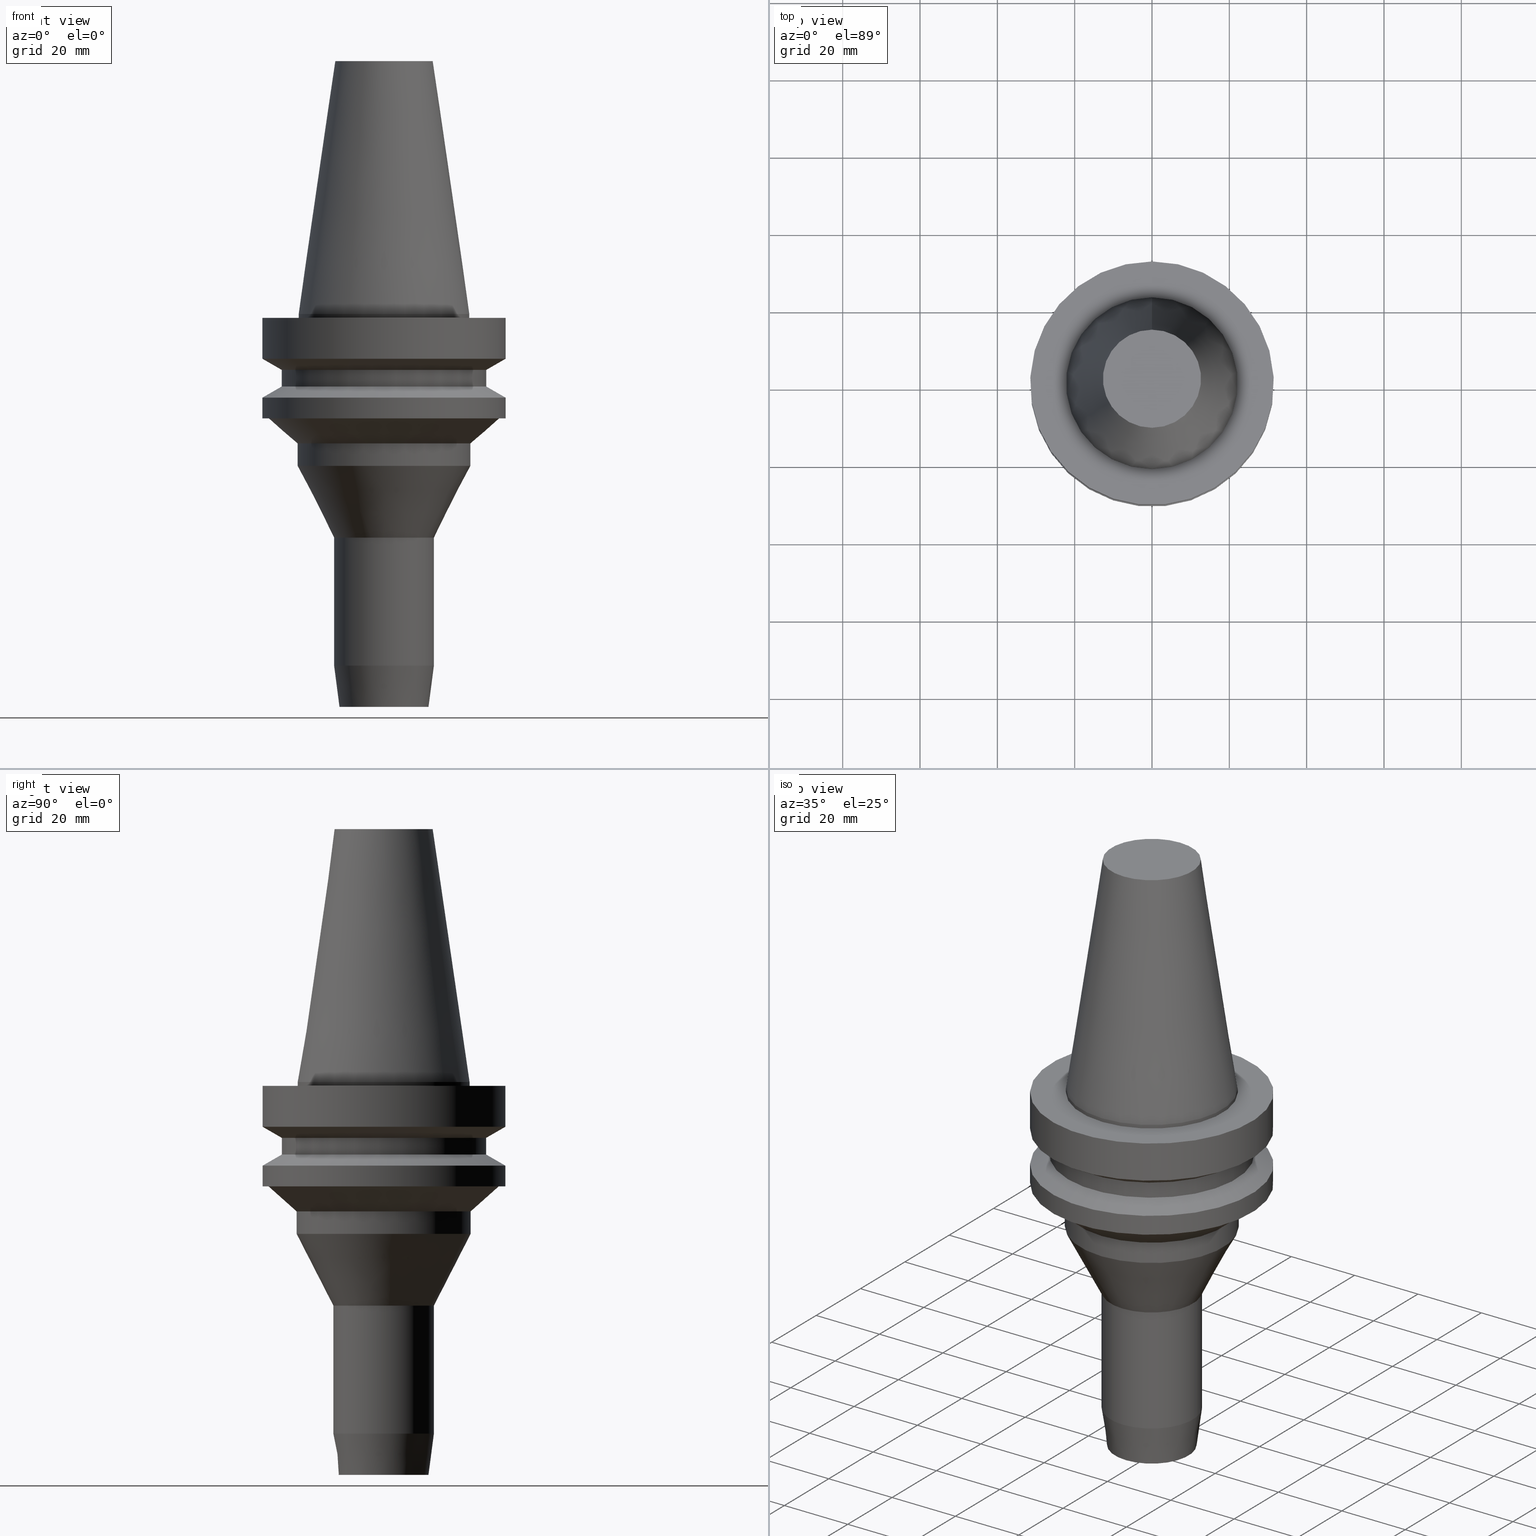
[diagram: canonical four-view strip — front | top / right | iso, engineering-drawing reading convention]
A machine part, canonical four-view strip (front | top / right | iso — engineering-drawing reading convention). The complete STEP part file that produces these views, byte-faithful:
ISO-10303-21;
HEADER;
FILE_DESCRIPTION((''),'1');
FILE_NAME('V:/90_\X2\53D65F9730C730FC30BF\X0\/00_\X2\6DE18DEF30C730FC30BF\X0\/ALL/BBT-BKUS\X2\FF76FF80FF9BFF78FF9E752852A05DE556F3\X0\201801/BBT40-HDC/BBT40-HDC.250-4.stp','2018-02-07T04:48:50',(''),(''),'Spatial Interop R21 SP3','Kubotek KeyCreator 2011 V10.0.2 (22737)',' ');
FILE_SCHEMA(('automotive_design'));
ENDSEC;
DATA;
#1=MECHANICAL_DESIGN_GEOMETRIC_PRESENTATION_REPRESENTATION(' ',(#10,#11,#12,#13,#14,#15,#16,#17,#18,#19,#20,#21,#22,#23,#24,#25,#26,#27,#28,#29,#30,#31,#32,#33,#34,#35,#36,#37,#38,#39,#40,#41),#6);
#2=PRODUCT_DEFINITION_CONTEXT('',#42,'design');
#3=APPLICATION_PROTOCOL_DEFINITION('INTERNATIONAL STANDARD','automotive_design',1994,#42);
#4=PRODUCT_CATEGORY_RELATIONSHIP('NONE','NONE',#43,#44);
#5=SHAPE_DEFINITION_REPRESENTATION(#45,#46);
#6= (GEOMETRIC_REPRESENTATION_CONTEXT(3)GLOBAL_UNCERTAINTY_ASSIGNED_CONTEXT((#49))GLOBAL_UNIT_ASSIGNED_CONTEXT((#51,#52,#53))REPRESENTATION_CONTEXT('NONE','WORKSPACE'));
#10=STYLED_ITEM('',(#55,#56),#57);
#11=STYLED_ITEM('',(#58,#59),#60);
#12=STYLED_ITEM('',(#61),#62);
#13=STYLED_ITEM('',(#63),#64);
#14=STYLED_ITEM('',(#65,#66),#67);
#15=STYLED_ITEM('',(#68),#69);
#16=STYLED_ITEM('',(#70,#71),#72);
#17=STYLED_ITEM('',(#73),#74);
#18=STYLED_ITEM('',(#75,#76),#77);
#19=STYLED_ITEM('',(#78),#79);
#20=STYLED_ITEM('',(#80,#81),#82);
#21=STYLED_ITEM('',(#83),#84);
#22=STYLED_ITEM('',(#85),#86);
#23=STYLED_ITEM('',(#87),#88);
#24=STYLED_ITEM('',(#89,#90),#91);
#25=STYLED_ITEM('',(#92,#93),#94);
#26=STYLED_ITEM('',(#95,#96),#97);
#27=STYLED_ITEM('',(#98,#99),#100);
#28=STYLED_ITEM('',(#101),#102);
#29=STYLED_ITEM('',(#103),#104);
#30=STYLED_ITEM('',(#105),#106);
#31=STYLED_ITEM('',(#107),#108);
#32=STYLED_ITEM('',(#109),#110);
#33=STYLED_ITEM('',(#111,#112),#113);
#34=STYLED_ITEM('',(#114,#115),#116);
#35=STYLED_ITEM('',(#117,#118),#119);
#36=STYLED_ITEM('',(#120,#121),#122);
#37=STYLED_ITEM('',(#123,#124),#125);
#38=STYLED_ITEM('',(#126,#127),#128);
#39=STYLED_ITEM('',(#129),#130);
#40=STYLED_ITEM('',(#131,#132),#133);
#41=STYLED_ITEM('',(#134),#135);
#42=APPLICATION_CONTEXT(' ');
#43=PRODUCT_CATEGORY('part','NONE');
#44=PRODUCT_RELATED_PRODUCT_CATEGORY('detail',' ',(#136));
#45=PRODUCT_DEFINITION_SHAPE('NONE','NONE',#137);
#46=ADVANCED_BREP_SHAPE_REPRESENTATION('Unnamed[1]',(#125,#138),#6);
#49=UNCERTAINTY_MEASURE_WITH_UNIT(LENGTH_MEASURE(1.0E-006),#51,'','');
#51= (CONVERSION_BASED_UNIT('MILLIMETRE',#141)LENGTH_UNIT()NAMED_UNIT(#144));
#52= (NAMED_UNIT(#146)PLANE_ANGLE_UNIT()SI_UNIT($,.RADIAN.));
#53= (NAMED_UNIT(#146)SOLID_ANGLE_UNIT()SI_UNIT($,.STERADIAN.));
#55=PRESENTATION_STYLE_ASSIGNMENT((#152));
#56=PRESENTATION_STYLE_ASSIGNMENT((#153));
#57=ADVANCED_FACE('Unnamed[1]',(#154,#155),#156,.T.);
#58=PRESENTATION_STYLE_ASSIGNMENT((#157));
#59=PRESENTATION_STYLE_ASSIGNMENT((#158));
#60=ADVANCED_FACE('Unnamed[1]',(#159,#160),#161,.T.);
#61=PRESENTATION_STYLE_ASSIGNMENT((#162));
#62=EDGE_CURVE('Unnamed[1]',#163,#163,#164,.T.);
#63=PRESENTATION_STYLE_ASSIGNMENT((#165));
#64=EDGE_CURVE('Unnamed[1]',#166,#166,#167,.T.);
#65=PRESENTATION_STYLE_ASSIGNMENT((#168));
#66=PRESENTATION_STYLE_ASSIGNMENT((#169));
#67=ADVANCED_FACE('Unnamed[1]',(#170,#171),#172,.T.);
#68=PRESENTATION_STYLE_ASSIGNMENT((#173));
#69=EDGE_CURVE('Unnamed[1]',#174,#174,#175,.T.);
#70=PRESENTATION_STYLE_ASSIGNMENT((#176));
#71=PRESENTATION_STYLE_ASSIGNMENT((#177));
#72=ADVANCED_FACE('Unnamed[1]',(#178,#179),#180,.T.);
#73=PRESENTATION_STYLE_ASSIGNMENT((#181));
#74=EDGE_CURVE('Unnamed[1]',#182,#182,#183,.T.);
#75=PRESENTATION_STYLE_ASSIGNMENT((#184));
#76=PRESENTATION_STYLE_ASSIGNMENT((#185));
#77=ADVANCED_FACE('Unnamed[1]',(#186,#187),#188,.T.);
#78=PRESENTATION_STYLE_ASSIGNMENT((#189));
#79=EDGE_CURVE('Unnamed[1]',#190,#190,#191,.T.);
#80=PRESENTATION_STYLE_ASSIGNMENT((#192));
#81=PRESENTATION_STYLE_ASSIGNMENT((#193));
#82=ADVANCED_FACE('Unnamed[1]',(#194,#195),#196,.T.);
#83=PRESENTATION_STYLE_ASSIGNMENT((#197));
#84=EDGE_CURVE('Unnamed[1]',#198,#198,#199,.T.);
#85=PRESENTATION_STYLE_ASSIGNMENT((#200));
#86=EDGE_CURVE('Unnamed[1]',#201,#201,#202,.T.);
#87=PRESENTATION_STYLE_ASSIGNMENT((#203));
#88=EDGE_CURVE('Unnamed[1]',#204,#204,#205,.T.);
#89=PRESENTATION_STYLE_ASSIGNMENT((#206));
#90=PRESENTATION_STYLE_ASSIGNMENT((#207));
#91=ADVANCED_FACE('Unnamed[1]',(#208,#209),#210,.T.);
#92=PRESENTATION_STYLE_ASSIGNMENT((#211));
#93=PRESENTATION_STYLE_ASSIGNMENT((#212));
#94=ADVANCED_FACE('Unnamed[1]',(#213,#214),#215,.T.);
#95=PRESENTATION_STYLE_ASSIGNMENT((#216));
#96=PRESENTATION_STYLE_ASSIGNMENT((#217));
#97=ADVANCED_FACE('Unnamed[1]',(#218),#219,.T.);
#98=PRESENTATION_STYLE_ASSIGNMENT((#220));
#99=PRESENTATION_STYLE_ASSIGNMENT((#221));
#100=ADVANCED_FACE('Unnamed[1]',(#222,#223),#224,.T.);
#101=PRESENTATION_STYLE_ASSIGNMENT((#225));
#102=EDGE_CURVE('Unnamed[1]',#226,#226,#227,.T.);
#103=PRESENTATION_STYLE_ASSIGNMENT((#228));
#104=EDGE_CURVE('Unnamed[1]',#229,#229,#230,.T.);
#105=PRESENTATION_STYLE_ASSIGNMENT((#231));
#106=EDGE_CURVE('Unnamed[1]',#232,#232,#233,.T.);
#107=PRESENTATION_STYLE_ASSIGNMENT((#234));
#108=EDGE_CURVE('Unnamed[1]',#235,#235,#236,.T.);
#109=PRESENTATION_STYLE_ASSIGNMENT((#237));
#110=EDGE_CURVE('Unnamed[1]',#238,#238,#239,.T.);
#111=PRESENTATION_STYLE_ASSIGNMENT((#240));
#112=PRESENTATION_STYLE_ASSIGNMENT((#241));
#113=ADVANCED_FACE('Unnamed[1]',(#242,#243),#244,.T.);
#114=PRESENTATION_STYLE_ASSIGNMENT((#245));
#115=PRESENTATION_STYLE_ASSIGNMENT((#246));
#116=ADVANCED_FACE('Unnamed[1]',(#247,#248),#249,.T.);
#117=PRESENTATION_STYLE_ASSIGNMENT((#250));
#118=PRESENTATION_STYLE_ASSIGNMENT((#251));
#119=ADVANCED_FACE('Unnamed[1]',(#252),#253,.T.);
#120=PRESENTATION_STYLE_ASSIGNMENT((#254));
#121=PRESENTATION_STYLE_ASSIGNMENT((#255));
#122=ADVANCED_FACE('Unnamed[1]',(#256,#257),#258,.T.);
#123=PRESENTATION_STYLE_ASSIGNMENT((#259));
#124=PRESENTATION_STYLE_ASSIGNMENT((#260));
#125=MANIFOLD_SOLID_BREP('Unnamed[1]',#261);
#126=PRESENTATION_STYLE_ASSIGNMENT((#262));
#127=PRESENTATION_STYLE_ASSIGNMENT((#263));
#128=ADVANCED_FACE('Unnamed[1]',(#264,#265),#266,.T.);
#129=PRESENTATION_STYLE_ASSIGNMENT((#267));
#130=EDGE_CURVE('Unnamed[1]',#268,#268,#269,.T.);
#131=PRESENTATION_STYLE_ASSIGNMENT((#270));
#132=PRESENTATION_STYLE_ASSIGNMENT((#271));
#133=ADVANCED_FACE('Unnamed[1]',(#272,#273),#274,.T.);
#134=PRESENTATION_STYLE_ASSIGNMENT((#275));
#135=EDGE_CURVE('Unnamed[1]',#276,#276,#277,.T.);
#136=PRODUCT('Unnamed[1]','Unnamed[1]','PART-Unnamed[1]-DESC',(#278));
#137=PRODUCT_DEFINITION('NONE','NONE',#279,#2);
#138=AXIS2_PLACEMENT_3D('',#280,#281,#282);
#141=LENGTH_MEASURE_WITH_UNIT(LENGTH_MEASURE(1.0),#283);
#144=DIMENSIONAL_EXPONENTS(1.0,0.0,0.0,0.0,0.0,0.0,0.0);
#146=DIMENSIONAL_EXPONENTS(0.0,0.0,0.0,0.0,0.0,0.0,0.0);
#152=SURFACE_STYLE_USAGE(.BOTH.,#284);
#153=CURVE_STYLE('',#285,POSITIVE_LENGTH_MEASURE(1000.0),#286);
#154=FACE_BOUND('',#287,.T.);
#155=FACE_BOUND('',#288,.T.);
#156=CONICAL_SURFACE('',#289,17.4562500000001,0.144812498238936);
#157=SURFACE_STYLE_USAGE(.BOTH.,#290);
#158=CURVE_STYLE('',#291,POSITIVE_LENGTH_MEASURE(1000.0),#292);
#159=FACE_BOUND('',#293,.T.);
#160=FACE_BOUND('',#294,.T.);
#161=CONICAL_SURFACE('',#295,28.9999999999999,1.04719755119657);
#162=CURVE_STYLE('',#296,POSITIVE_LENGTH_MEASURE(1000.0),#297);
#163=VERTEX_POINT('',#298);
#164=CIRCLE('',#299,26.4999999999994);
#165=CURVE_STYLE('',#300,POSITIVE_LENGTH_MEASURE(1000.0),#301);
#166=VERTEX_POINT('',#302);
#167=CIRCLE('',#303,22.5000000000004);
#168=SURFACE_STYLE_USAGE(.BOTH.,#304);
#169=CURVE_STYLE('',#305,POSITIVE_LENGTH_MEASURE(1000.0),#306);
#170=FACE_BOUND('',#307,.T.);
#171=FACE_BOUND('',#308,.T.);
#172=CONICAL_SURFACE('',#309,26.126119515502,0.842867621947714);
#173=CURVE_STYLE('',#310,POSITIVE_LENGTH_MEASURE(1000.0),#311);
#174=VERTEX_POINT('',#312);
#175=CIRCLE('',#313,13.0000000000003);
#176=SURFACE_STYLE_USAGE(.BOTH.,#314);
#177=CURVE_STYLE('',#315,POSITIVE_LENGTH_MEASURE(1000.0),#316);
#178=FACE_BOUND('',#317,.T.);
#179=FACE_BOUND('',#318,.T.);
#180=CYLINDRICAL_SURFACE('',#319,22.225);
#181=CURVE_STYLE('',#320,POSITIVE_LENGTH_MEASURE(1000.0),#321);
#182=VERTEX_POINT('',#322);
#183=CIRCLE('',#323,22.225);
#184=SURFACE_STYLE_USAGE(.BOTH.,#324);
#185=CURVE_STYLE('',#325,POSITIVE_LENGTH_MEASURE(1000.0),#326);
#186=FACE_BOUND('',#327,.T.);
#187=FACE_BOUND('',#328,.T.);
#188=CYLINDRICAL_SURFACE('',#329,26.4999999999997);
#189=CURVE_STYLE('',#330,POSITIVE_LENGTH_MEASURE(1000.0),#331);
#190=VERTEX_POINT('',#332);
#191=CIRCLE('',#333,22.225);
#192=SURFACE_STYLE_USAGE(.BOTH.,#334);
#193=CURVE_STYLE('',#335,POSITIVE_LENGTH_MEASURE(1000.0),#336);
#194=FACE_BOUND('',#337,.T.);
#195=FACE_BOUND('',#338,.T.);
#196=CONICAL_SURFACE('',#339,12.2979216258449,0.130899693899574);
#197=CURVE_STYLE('',#340,POSITIVE_LENGTH_MEASURE(1000.0),#341);
#198=VERTEX_POINT('',#342);
#199=CIRCLE('',#343,11.5958432516896);
#200=CURVE_STYLE('',#344,POSITIVE_LENGTH_MEASURE(1000.0),#345);
#201=VERTEX_POINT('',#346);
#202=CIRCLE('',#347,31.5000000000004);
#203=CURVE_STYLE('',#348,POSITIVE_LENGTH_MEASURE(1000.0),#349);
#204=VERTEX_POINT('',#350);
#205=CIRCLE('',#351,31.5000000000007);
#206=SURFACE_STYLE_USAGE(.BOTH.,#352);
#207=CURVE_STYLE('',#353,POSITIVE_LENGTH_MEASURE(1000.0),#354);
#208=FACE_BOUND('',#355,.T.);
#209=FACE_BOUND('',#356,.T.);
#210=CYLINDRICAL_SURFACE('',#357,22.5000000000001);
#211=SURFACE_STYLE_USAGE(.BOTH.,#358);
#212=CURVE_STYLE('',#359,POSITIVE_LENGTH_MEASURE(1000.0),#360);
#213=FACE_BOUND('',#361,.T.);
#214=FACE_OUTER_BOUND('',#362,.T.);
#215=PLANE('',#363);
#216=SURFACE_STYLE_USAGE(.BOTH.,#364);
#217=CURVE_STYLE('',#365,POSITIVE_LENGTH_MEASURE(1000.0),#366);
#218=FACE_OUTER_BOUND('',#367,.T.);
#219=PLANE('',#368);
#220=SURFACE_STYLE_USAGE(.BOTH.,#369);
#221=CURVE_STYLE('',#370,POSITIVE_LENGTH_MEASURE(1000.0),#371);
#222=FACE_BOUND('',#372,.T.);
#223=FACE_BOUND('',#373,.T.);
#224=CONICAL_SURFACE('',#374,17.749999999999,0.473260842442208);
#225=CURVE_STYLE('',#375,POSITIVE_LENGTH_MEASURE(1000.0),#376);
#226=VERTEX_POINT('',#377);
#227=CIRCLE('',#378,31.5000000000003);
#228=CURVE_STYLE('',#379,POSITIVE_LENGTH_MEASURE(1000.0),#380);
#229=VERTEX_POINT('',#381);
#230=CIRCLE('',#382,12.6875000000001);
#231=CURVE_STYLE('',#383,POSITIVE_LENGTH_MEASURE(1000.0),#384);
#232=VERTEX_POINT('',#385);
#233=CIRCLE('',#386,26.5);
#234=CURVE_STYLE('',#387,POSITIVE_LENGTH_MEASURE(1000.0),#388);
#235=VERTEX_POINT('',#389);
#236=CIRCLE('',#390,29.7522390310041);
#237=CURVE_STYLE('',#391,POSITIVE_LENGTH_MEASURE(1000.0),#392);
#238=VERTEX_POINT('',#393);
#239=CIRCLE('',#394,12.9999999999976);
#240=SURFACE_STYLE_USAGE(.BOTH.,#395);
#241=CURVE_STYLE('',#396,POSITIVE_LENGTH_MEASURE(1000.0),#397);
#242=FACE_BOUND('',#398,.T.);
#243=FACE_BOUND('',#399,.T.);
#244=CYLINDRICAL_SURFACE('',#400,31.5000000000005);
#245=SURFACE_STYLE_USAGE(.BOTH.,#401);
#246=CURVE_STYLE('',#402,POSITIVE_LENGTH_MEASURE(1000.0),#403);
#247=FACE_BOUND('',#404,.T.);
#248=FACE_BOUND('',#405,.T.);
#249=CYLINDRICAL_SURFACE('',#406,31.5);
#250=SURFACE_STYLE_USAGE(.BOTH.,#407);
#251=CURVE_STYLE('',#408,POSITIVE_LENGTH_MEASURE(1000.0),#409);
#252=FACE_OUTER_BOUND('',#410,.T.);
#253=PLANE('',#411);
#254=SURFACE_STYLE_USAGE(.BOTH.,#412);
#255=CURVE_STYLE('',#413,POSITIVE_LENGTH_MEASURE(1000.0),#414);
#256=FACE_BOUND('',#415,.T.);
#257=FACE_BOUND('',#416,.T.);
#258=CONICAL_SURFACE('',#417,29.0000000000003,1.04719755119651);
#259=SURFACE_STYLE_USAGE(.BOTH.,#418);
#260=CURVE_STYLE('',#419,POSITIVE_LENGTH_MEASURE(1000.0),#420);
#261=CLOSED_SHELL('',(#97,#57,#72,#128,#116,#60,#77,#122,#113,#94,#67,#91,#100,#133,#82,#119));
#262=SURFACE_STYLE_USAGE(.BOTH.,#421);
#263=CURVE_STYLE('',#422,POSITIVE_LENGTH_MEASURE(1000.0),#423);
#264=FACE_OUTER_BOUND('',#424,.T.);
#265=FACE_BOUND('',#425,.T.);
#266=PLANE('',#426);
#267=CURVE_STYLE('',#427,POSITIVE_LENGTH_MEASURE(1000.0),#428);
#268=VERTEX_POINT('',#429);
#269=CIRCLE('',#430,22.4999999999998);
#270=SURFACE_STYLE_USAGE(.BOTH.,#431);
#271=CURVE_STYLE('',#432,POSITIVE_LENGTH_MEASURE(1000.0),#433);
#272=FACE_BOUND('',#434,.T.);
#273=FACE_BOUND('',#435,.T.);
#274=CYLINDRICAL_SURFACE('',#436,12.999999999999);
#275=CURVE_STYLE('',#437,POSITIVE_LENGTH_MEASURE(1000.0),#438);
#276=VERTEX_POINT('',#439);
#277=CIRCLE('',#440,31.4999999999997);
#278=PRODUCT_CONTEXT('',#42,'mechanical');
#279=PRODUCT_DEFINITION_FORMATION_WITH_SPECIFIED_SOURCE(' ','NONE',#136,.NOT_KNOWN.);
#280=CARTESIAN_POINT('',(0.0,0.0,0.0));
#281=DIRECTION('',(0.0,0.0,1.0));
#282=DIRECTION('',(1.0,0.0,0.0));
#283= (NAMED_UNIT(#144)LENGTH_UNIT()SI_UNIT(.MILLI.,.METRE.));
#284=SURFACE_SIDE_STYLE('',(#442));
#285=DRAUGHTING_PRE_DEFINED_CURVE_FONT('continuous');
#286=COLOUR_RGB('',0.0,1.0,0.0);
#287=EDGE_LOOP('',(#443));
#288=EDGE_LOOP('',(#444));
#289=AXIS2_PLACEMENT_3D('',#445,#446,#447);
#290=SURFACE_SIDE_STYLE('',(#448));
#291=DRAUGHTING_PRE_DEFINED_CURVE_FONT('continuous');
#292=COLOUR_RGB('',0.0,1.0,0.0);
#293=EDGE_LOOP('',(#449));
#294=EDGE_LOOP('',(#450));
#295=AXIS2_PLACEMENT_3D('',#451,#452,#453);
#296=DRAUGHTING_PRE_DEFINED_CURVE_FONT('continuous');
#297=COLOUR_RGB('',0.0,1.0,0.0);
#298=CARTESIAN_POINT('',(8.8494551369045E-016,26.4999999999995,-14.4522569986152));
#299=AXIS2_PLACEMENT_3D('',#454,#455,#456);
#300=DRAUGHTING_PRE_DEFINED_CURVE_FONT('continuous');
#301=COLOUR_RGB('',0.0,1.0,0.0);
#302=CARTESIAN_POINT('',(2.40459052004988E-015,22.5000000000005,-39.2699433293591));
#303=AXIS2_PLACEMENT_3D('',#457,#458,#459);
#304=SURFACE_SIDE_STYLE('',(#460));
#305=DRAUGHTING_PRE_DEFINED_CURVE_FONT('continuous');
#306=COLOUR_RGB('',0.0,1.0,0.0);
#307=EDGE_LOOP('',(#461));
#308=EDGE_LOOP('',(#462));
#309=AXIS2_PLACEMENT_3D('',#463,#464,#465);
#310=DRAUGHTING_PRE_DEFINED_CURVE_FONT('continuous');
#311=COLOUR_RGB('',0.0,1.0,0.0);
#312=CARTESIAN_POINT('',(5.56812429463614E-015,13.0000000000003,-90.9343706040449));
#313=AXIS2_PLACEMENT_3D('',#466,#467,#468);
#314=SURFACE_SIDE_STYLE('',(#469));
#315=DRAUGHTING_PRE_DEFINED_CURVE_FONT('continuous');
#316=COLOUR_RGB('',0.0,1.0,0.0);
#317=EDGE_LOOP('',(#470));
#318=EDGE_LOOP('',(#471));
#319=AXIS2_PLACEMENT_3D('',#472,#473,#474);
#320=DRAUGHTING_PRE_DEFINED_CURVE_FONT('continuous');
#321=COLOUR_RGB('',0.0,1.0,0.0);
#322=CARTESIAN_POINT('',(1.71319921032766E-029,22.2250000000001,-2.8153873565375E-013));
#323=AXIS2_PLACEMENT_3D('',#475,#476,#477);
#324=SURFACE_SIDE_STYLE('',(#478));
#325=DRAUGHTING_PRE_DEFINED_CURVE_FONT('continuous');
#326=COLOUR_RGB('',0.0,1.0,0.0);
#327=EDGE_LOOP('',(#479));
#328=EDGE_LOOP('',(#480));
#329=AXIS2_PLACEMENT_3D('',#481,#482,#483);
#330=DRAUGHTING_PRE_DEFINED_CURVE_FONT('continuous');
#331=COLOUR_RGB('',0.0,1.0,0.0);
#332=CARTESIAN_POINT('',(6.12323399573622E-017,22.2250000000001,-0.999999999999912));
#333=AXIS2_PLACEMENT_3D('',#484,#485,#486);
#334=SURFACE_SIDE_STYLE('',(#487));
#335=DRAUGHTING_PRE_DEFINED_CURVE_FONT('continuous');
#336=COLOUR_RGB('',0.0,1.0,0.0);
#337=EDGE_LOOP('',(#488));
#338=EDGE_LOOP('',(#489));
#339=AXIS2_PLACEMENT_3D('',#490,#491,#492);
#340=DRAUGHTING_PRE_DEFINED_CURVE_FONT('continuous');
#341=COLOUR_RGB('',0.0,1.0,0.0);
#342=CARTESIAN_POINT('',(6.22120573966471E-015,11.5958432516895,-101.599999999937));
#343=AXIS2_PLACEMENT_3D('',#493,#494,#495);
#344=DRAUGHTING_PRE_DEFINED_CURVE_FONT('continuous');
#345=COLOUR_RGB('',0.0,1.0,0.0);
#346=CARTESIAN_POINT('',(1.65327317884891E-015,31.5000000000004,-26.9999999999998));
#347=AXIS2_PLACEMENT_3D('',#496,#497,#498);
#348=DRAUGHTING_PRE_DEFINED_CURVE_FONT('continuous');
#349=COLOUR_RGB('',0.0,1.0,0.0);
#350=CARTESIAN_POINT('',(1.32473071268174E-015,31.5000000000007,-21.6344943473346));
#351=AXIS2_PLACEMENT_3D('',#499,#500,#501);
#352=SURFACE_SIDE_STYLE('',(#502));
#353=DRAUGHTING_PRE_DEFINED_CURVE_FONT('continuous');
#354=COLOUR_RGB('',0.0,1.0,0.0);
#355=EDGE_LOOP('',(#503));
#356=EDGE_LOOP('',(#504));
#357=AXIS2_PLACEMENT_3D('',#505,#506,#507);
#358=SURFACE_SIDE_STYLE('',(#508));
#359=DRAUGHTING_PRE_DEFINED_CURVE_FONT('continuous');
#360=COLOUR_RGB('',0.0,1.0,0.0);
#361=EDGE_LOOP('',(#509));
#362=EDGE_LOOP('',(#510));
#363=AXIS2_PLACEMENT_3D('',#511,#512,#513);
#364=SURFACE_SIDE_STYLE('',(#514));
#365=DRAUGHTING_PRE_DEFINED_CURVE_FONT('continuous');
#366=COLOUR_RGB('',0.0,1.0,0.0);
#367=EDGE_LOOP('',(#515));
#368=AXIS2_PLACEMENT_3D('',#516,#517,#518);
#369=SURFACE_SIDE_STYLE('',(#519));
#370=DRAUGHTING_PRE_DEFINED_CURVE_FONT('continuous');
#371=COLOUR_RGB('',0.0,1.0,0.0);
#372=EDGE_LOOP('',(#520));
#373=EDGE_LOOP('',(#521));
#374=AXIS2_PLACEMENT_3D('',#522,#523,#524);
#375=DRAUGHTING_PRE_DEFINED_CURVE_FONT('continuous');
#376=COLOUR_RGB('',0.0,1.0,0.0);
#377=CARTESIAN_POINT('',(7.08182973902924E-016,31.5000000000004,-11.5655056526664));
#378=AXIS2_PLACEMENT_3D('',#525,#526,#527);
#379=DRAUGHTING_PRE_DEFINED_CURVE_FONT('continuous');
#380=COLOUR_RGB('',0.0,1.0,0.0);
#381=CARTESIAN_POINT('',(-4.00459503321185E-015,12.6875000000002,65.4000000000001));
#382=AXIS2_PLACEMENT_3D('',#528,#529,#530);
#383=DRAUGHTING_PRE_DEFINED_CURVE_FONT('continuous');
#384=COLOUR_RGB('',0.0,1.0,0.0);
#385=CARTESIAN_POINT('',(1.1479681728942E-015,26.5,-18.7477430013855));
#386=AXIS2_PLACEMENT_3D('',#531,#532,#533);
#387=DRAUGHTING_PRE_DEFINED_CURVE_FONT('continuous');
#388=COLOUR_RGB('',0.0,1.0,0.0);
#389=CARTESIAN_POINT('',(1.65327317884891E-015,29.7522390310041,-26.9999999999998));
#390=AXIS2_PLACEMENT_3D('',#534,#535,#536);
#391=DRAUGHTING_PRE_DEFINED_CURVE_FONT('continuous');
#392=COLOUR_RGB('',0.0,1.0,0.0);
#393=CARTESIAN_POINT('',(3.54057115273627E-015,12.9999999999976,-57.8219149423548));
#394=AXIS2_PLACEMENT_3D('',#537,#538,#539);
#395=SURFACE_SIDE_STYLE('',(#540));
#396=DRAUGHTING_PRE_DEFINED_CURVE_FONT('continuous');
#397=COLOUR_RGB('',0.0,1.0,0.0);
#398=EDGE_LOOP('',(#541));
#399=EDGE_LOOP('',(#542));
#400=AXIS2_PLACEMENT_3D('',#543,#544,#545);
#401=SURFACE_SIDE_STYLE('',(#546));
#402=DRAUGHTING_PRE_DEFINED_CURVE_FONT('continuous');
#403=COLOUR_RGB('',0.0,1.0,0.0);
#404=EDGE_LOOP('',(#547));
#405=EDGE_LOOP('',(#548));
#406=AXIS2_PLACEMENT_3D('',#549,#550,#551);
#407=SURFACE_SIDE_STYLE('',(#552));
#408=DRAUGHTING_PRE_DEFINED_CURVE_FONT('continuous');
#409=COLOUR_RGB('',0.0,1.0,0.0);
#410=EDGE_LOOP('',(#553));
#411=AXIS2_PLACEMENT_3D('',#554,#555,#556);
#412=SURFACE_SIDE_STYLE('',(#557));
#413=DRAUGHTING_PRE_DEFINED_CURVE_FONT('continuous');
#414=COLOUR_RGB('',0.0,1.0,0.0);
#415=EDGE_LOOP('',(#558));
#416=EDGE_LOOP('',(#559));
#417=AXIS2_PLACEMENT_3D('',#560,#561,#562);
#418=SURFACE_SIDE_STYLE('',(#563));
#419=DRAUGHTING_PRE_DEFINED_CURVE_FONT('continuous');
#420=COLOUR_RGB('',0.0,1.0,0.0);
#421=SURFACE_SIDE_STYLE('',(#564));
#422=DRAUGHTING_PRE_DEFINED_CURVE_FONT('continuous');
#423=COLOUR_RGB('',0.0,1.0,0.0);
#424=EDGE_LOOP('',(#565));
#425=EDGE_LOOP('',(#566));
#426=AXIS2_PLACEMENT_3D('',#567,#568,#569);
#427=DRAUGHTING_PRE_DEFINED_CURVE_FONT('continuous');
#428=COLOUR_RGB('',0.0,1.0,0.0);
#429=CARTESIAN_POINT('',(2.04902721681725E-015,22.4999999999998,-33.4631539190542));
#430=AXIS2_PLACEMENT_3D('',#570,#571,#572);
#431=SURFACE_SIDE_STYLE('',(#573));
#432=DRAUGHTING_PRE_DEFINED_CURVE_FONT('continuous');
#433=COLOUR_RGB('',0.0,1.0,0.0);
#434=EDGE_LOOP('',(#574));
#435=EDGE_LOOP('',(#575));
#436=AXIS2_PLACEMENT_3D('',#576,#577,#578);
#437=DRAUGHTING_PRE_DEFINED_CURVE_FONT('continuous');
#438=COLOUR_RGB('',0.0,1.0,0.0);
#439=CARTESIAN_POINT('',(6.12323399573568E-017,31.4999999999997,-0.999999999999825));
#440=AXIS2_PLACEMENT_3D('',#579,#580,#581);
#442=SURFACE_STYLE_FILL_AREA(#582);
#443=ORIENTED_EDGE('',*,*,#74,.F.);
#444=ORIENTED_EDGE('',*,*,#104,.T.);
#445=CARTESIAN_POINT('',(-2.00229751660592E-015,5.83366963864905E-014,32.6999999999999));
#446=DIRECTION('',(6.12323399573677E-017,-5.58802637008037E-016,-1.0));
#447=DIRECTION('',(2.93896403075806E-032,1.0,-5.58802637008037E-016));
#448=SURFACE_STYLE_FILL_AREA(#583);
#449=ORIENTED_EDGE('',*,*,#62,.F.);
#450=ORIENTED_EDGE('',*,*,#102,.T.);
#451=CARTESIAN_POINT('',(7.96564243796687E-016,3.27944529670351E-014,-13.0088813256408));
#452=DIRECTION('',(-6.12323399573677E-017,5.58802637008037E-016,1.0));
#453=DIRECTION('',(2.93896403075806E-032,1.0,-5.58802637008037E-016));
#454=CARTESIAN_POINT('',(8.84945513690449E-016,3.19878908347838E-014,-14.4522569986152));
#455=DIRECTION('',(6.12323399573677E-017,-5.58802637008037E-016,-1.0));
#456=DIRECTION('',(2.93896403075806E-032,1.0,-5.58802637008037E-016));
#457=CARTESIAN_POINT('',(2.40459052004988E-015,1.81197022687258E-014,-39.269943329359));
#458=DIRECTION('',(6.12323399573677E-017,-5.58802637008037E-016,-1.0));
#459=DIRECTION('',(2.93896403075806E-032,1.0,-5.58802637008037E-016));
#460=SURFACE_STYLE_FILL_AREA(#584);
#461=ORIENTED_EDGE('',*,*,#130,.F.);
#462=ORIENTED_EDGE('',*,*,#108,.T.);
#463=CARTESIAN_POINT('',(1.85115019783308E-015,2.31703652304327E-014,-30.231576959527));
#464=DIRECTION('',(-6.12323399573677E-017,5.58802637008037E-016,1.0));
#465=DIRECTION('',(2.93896403075806E-032,1.0,-5.58802637008037E-016));
#466=CARTESIAN_POINT('',(5.56812429463614E-015,-1.07505159318787E-014,-90.9343706040449));
#467=DIRECTION('',(6.12323399573677E-017,-5.58802637008037E-016,-1.0));
#468=DIRECTION('',(2.93896403075806E-032,1.0,-5.58802637008037E-016));
#469=SURFACE_STYLE_FILL_AREA(#585);
#470=ORIENTED_EDGE('',*,*,#79,.F.);
#471=ORIENTED_EDGE('',*,*,#74,.T.);
#472=CARTESIAN_POINT('',(3.06161699786891E-017,3.97844488378237E-014,-0.500000000000085));
#473=DIRECTION('',(6.12323399573677E-017,-5.58802637008037E-016,-1.0));
#474=DIRECTION('',(2.93896403075806E-032,1.0,-5.58802637008037E-016));
#475=CARTESIAN_POINT('',(1.65331138531142E-029,4.00638501563276E-014,-2.70006239588838E-013));
#476=DIRECTION('',(6.12323399573677E-017,-5.58802637008037E-016,-1.0));
#477=DIRECTION('',(2.93896403075806E-032,1.0,-5.58802637008037E-016));
#478=SURFACE_STYLE_FILL_AREA(#586);
#479=ORIENTED_EDGE('',*,*,#106,.F.);
#480=ORIENTED_EDGE('',*,*,#62,.T.);
#481=CARTESIAN_POINT('',(1.01645684329232E-015,3.07877263819942E-014,-16.6000000000003));
#482=DIRECTION('',(6.12323399573677E-017,-5.58802637008037E-016,-1.0));
#483=DIRECTION('',(2.93896403075806E-032,1.0,-5.58802637008037E-016));
#484=CARTESIAN_POINT('',(6.12323399573616E-017,3.95050475193198E-014,-0.999999999999901));
#485=DIRECTION('',(6.12323399573677E-017,-5.58802637008037E-016,-1.0));
#486=DIRECTION('',(2.93896403075806E-032,1.0,-5.58802637008037E-016));
#487=SURFACE_STYLE_FILL_AREA(#587);
#488=ORIENTED_EDGE('',*,*,#84,.F.);
#489=ORIENTED_EDGE('',*,*,#69,.T.);
#490=CARTESIAN_POINT('',(5.89466501715042E-015,-1.37305068477662E-014,-96.267185301991));
#491=DIRECTION('',(-6.12323399573676E-017,5.58802637008037E-016,1.0));
#492=DIRECTION('',(2.93896403075806E-032,1.0,-5.58802637008037E-016));
#493=CARTESIAN_POINT('',(6.22120573966471E-015,-1.67104977636537E-014,-101.599999999937));
#494=DIRECTION('',(6.12323399573676E-017,-5.58802637008037E-016,-1.0));
#495=DIRECTION('',(2.93896403075806E-032,1.0,-5.58802637008037E-016));
#496=CARTESIAN_POINT('',(1.65327317884891E-015,2.49761789571109E-014,-26.9999999999997));
#497=DIRECTION('',(6.12323399573677E-017,-5.58802637008037E-016,-1.0));
#498=DIRECTION('',(2.93896403075806E-032,1.0,-5.58802637008037E-016));
#499=CARTESIAN_POINT('',(1.32473071268174E-015,2.79744376647017E-014,-21.6344943473346));
#500=DIRECTION('',(6.12323399573677E-017,-5.58802637008037E-016,-1.0));
#501=DIRECTION('',(2.93896403075806E-032,1.0,-5.58802637008037E-016));
#502=SURFACE_STYLE_FILL_AREA(#588);
#503=ORIENTED_EDGE('',*,*,#64,.F.);
#504=ORIENTED_EDGE('',*,*,#130,.T.);
#505=CARTESIAN_POINT('',(2.22680886843356E-015,1.97421268862401E-014,-36.3665486242066));
#506=DIRECTION('',(6.12323399573677E-017,-5.58802637008037E-016,-1.0));
#507=DIRECTION('',(2.93896403075806E-032,1.0,-5.58802637008037E-016));
#508=SURFACE_STYLE_FILL_AREA(#589);
#509=ORIENTED_EDGE('',*,*,#108,.F.);
#510=ORIENTED_EDGE('',*,*,#86,.T.);
#511=CARTESIAN_POINT('',(1.65327317884891E-015,30.6261195155023,-26.9999999999998));
#512=DIRECTION('',(6.12323399573677E-017,6.22063326558956E-015,-1.0));
#513=DIRECTION('',(-3.85731083599459E-031,1.0,6.22063326558956E-015));
#514=SURFACE_STYLE_FILL_AREA(#590);
#515=ORIENTED_EDGE('',*,*,#104,.F.);
#516=CARTESIAN_POINT('',(-4.00459503321185E-015,6.34375000000014,65.4000000000001));
#517=DIRECTION('',(-6.12323399573677E-017,9.97602686800683E-016,1.0));
#518=DIRECTION('',(-5.62583941297938E-032,-1.0,9.97602686800683E-016));
#519=SURFACE_STYLE_FILL_AREA(#591);
#520=ORIENTED_EDGE('',*,*,#110,.F.);
#521=ORIENTED_EDGE('',*,*,#64,.T.);
#522=CARTESIAN_POINT('',(2.97258083639307E-015,1.29362569392056E-014,-48.5459291358569));
#523=DIRECTION('',(-6.12323399573677E-017,5.58802637008037E-016,1.0));
#524=DIRECTION('',(2.93896403075806E-032,1.0,-5.58802637008037E-016));
#525=CARTESIAN_POINT('',(7.08182973902922E-016,3.36010150992865E-014,-11.5655056526663));
#526=DIRECTION('',(6.12323399573677E-017,-5.58802637008037E-016,-1.0));
#527=DIRECTION('',(2.93896403075806E-032,1.0,-5.58802637008037E-016));
#528=CARTESIAN_POINT('',(-4.00459503321185E-015,7.66095426166535E-014,65.4000000000001));
#529=DIRECTION('',(6.12323399573677E-017,-5.58802637008037E-016,-1.0));
#530=DIRECTION('',(2.93896403075806E-032,1.0,-5.58802637008037E-016));
#531=CARTESIAN_POINT('',(1.1479681728942E-015,2.95875619292046E-014,-18.7477430013855));
#532=DIRECTION('',(6.12323399573677E-017,-5.58802637008037E-016,-1.0));
#533=DIRECTION('',(2.93896403075806E-032,1.0,-5.58802637008037E-016));
#534=CARTESIAN_POINT('',(1.65327317884891E-015,2.49761789571109E-014,-26.9999999999998));
#535=DIRECTION('',(6.12323399573677E-017,-5.58802637008037E-016,-1.0));
#536=DIRECTION('',(2.93896403075806E-032,1.0,-5.58802637008037E-016));
#537=CARTESIAN_POINT('',(3.54057115273627E-015,7.75281160968547E-015,-57.8219149423548));
#538=DIRECTION('',(6.12323399573677E-017,-5.58802637008037E-016,-1.0));
#539=DIRECTION('',(2.93896403075806E-032,1.0,-5.58802637008037E-016));
#540=SURFACE_STYLE_FILL_AREA(#592);
#541=ORIENTED_EDGE('',*,*,#86,.F.);
#542=ORIENTED_EDGE('',*,*,#88,.T.);
#543=CARTESIAN_POINT('',(1.48900194576533E-015,2.64753083109063E-014,-24.3172471736672));
#544=DIRECTION('',(6.12323399573677E-017,-5.58802637008037E-016,-1.0));
#545=DIRECTION('',(2.93896403075806E-032,1.0,-5.58802637008037E-016));
#546=SURFACE_STYLE_FILL_AREA(#593);
#547=ORIENTED_EDGE('',*,*,#102,.F.);
#548=ORIENTED_EDGE('',*,*,#135,.T.);
#549=CARTESIAN_POINT('',(3.84707656930139E-016,3.65530313093032E-014,-6.28275282633307));
#550=DIRECTION('',(6.12323399573677E-017,-5.58802637008037E-016,-1.0));
#551=DIRECTION('',(2.93896403075806E-032,1.0,-5.58802637008037E-016));
#552=SURFACE_STYLE_FILL_AREA(#594);
#553=ORIENTED_EDGE('',*,*,#84,.T.);
#554=CARTESIAN_POINT('',(6.22120573966471E-015,5.79792162584476,-101.599999999937));
#555=DIRECTION('',(6.12323399573677E-017,1.22464679914735E-016,-1.0));
#556=DIRECTION('',(-1.23259516440783E-032,1.0,1.22464679914735E-016));
#557=SURFACE_STYLE_FILL_AREA(#595);
#558=ORIENTED_EDGE('',*,*,#88,.F.);
#559=ORIENTED_EDGE('',*,*,#106,.T.);
#560=CARTESIAN_POINT('',(1.23634944278797E-015,2.87809997969531E-014,-20.1911186743601));
#561=DIRECTION('',(6.12323399573677E-017,-5.58802637008037E-016,-1.0));
#562=DIRECTION('',(2.93896403075806E-032,1.0,-5.58802637008037E-016));
#563=SURFACE_STYLE_FILL_AREA(#596);
#564=SURFACE_STYLE_FILL_AREA(#597);
#565=ORIENTED_EDGE('',*,*,#135,.F.);
#566=ORIENTED_EDGE('',*,*,#79,.T.);
#567=CARTESIAN_POINT('',(6.12323399573595E-017,26.8624999999999,-0.999999999999869));
#568=DIRECTION('',(-6.12323399573677E-017,-9.35138060429241E-015,1.0));
#569=DIRECTION('',(5.77434068963536E-031,-1.0,-9.35138060429241E-015));
#570=CARTESIAN_POINT('',(2.04902721681725E-015,2.13645515037544E-014,-33.4631539190542));
#571=DIRECTION('',(6.12323399573677E-017,-5.58802637008037E-016,-1.0));
#572=DIRECTION('',(2.93896403075806E-032,1.0,-5.58802637008037E-016));
#573=SURFACE_STYLE_FILL_AREA(#598);
#574=ORIENTED_EDGE('',*,*,#69,.F.);
#575=ORIENTED_EDGE('',*,*,#110,.T.);
#576=CARTESIAN_POINT('',(4.5543477236862E-015,-1.4988521610966E-015,-74.3781427731998));
#577=DIRECTION('',(6.12323399573677E-017,-5.58802637008037E-016,-1.0));
#578=DIRECTION('',(2.93896403075806E-032,1.0,-5.58802637008037E-016));
#579=CARTESIAN_POINT('',(6.12323399573555E-017,3.95050475193198E-014,-0.999999999999801));
#580=DIRECTION('',(6.12323399573677E-017,-5.58802637008037E-016,-1.0));
#581=DIRECTION('',(2.93896403075806E-032,1.0,-5.58802637008037E-016));
#582=FILL_AREA_STYLE('',(#599));
#583=FILL_AREA_STYLE('',(#600));
#584=FILL_AREA_STYLE('',(#601));
#585=FILL_AREA_STYLE('',(#602));
#586=FILL_AREA_STYLE('',(#603));
#587=FILL_AREA_STYLE('',(#604));
#588=FILL_AREA_STYLE('',(#605));
#589=FILL_AREA_STYLE('',(#606));
#590=FILL_AREA_STYLE('',(#607));
#591=FILL_AREA_STYLE('',(#608));
#592=FILL_AREA_STYLE('',(#609));
#593=FILL_AREA_STYLE('',(#610));
#594=FILL_AREA_STYLE('',(#611));
#595=FILL_AREA_STYLE('',(#612));
#596=FILL_AREA_STYLE('',(#613));
#597=FILL_AREA_STYLE('',(#614));
#598=FILL_AREA_STYLE('',(#615));
#599=FILL_AREA_STYLE_COLOUR('',#616);
#600=FILL_AREA_STYLE_COLOUR('',#617);
#601=FILL_AREA_STYLE_COLOUR('',#618);
#602=FILL_AREA_STYLE_COLOUR('',#619);
#603=FILL_AREA_STYLE_COLOUR('',#620);
#604=FILL_AREA_STYLE_COLOUR('',#621);
#605=FILL_AREA_STYLE_COLOUR('',#622);
#606=FILL_AREA_STYLE_COLOUR('',#623);
#607=FILL_AREA_STYLE_COLOUR('',#624);
#608=FILL_AREA_STYLE_COLOUR('',#625);
#609=FILL_AREA_STYLE_COLOUR('',#626);
#610=FILL_AREA_STYLE_COLOUR('',#627);
#611=FILL_AREA_STYLE_COLOUR('',#628);
#612=FILL_AREA_STYLE_COLOUR('',#629);
#613=FILL_AREA_STYLE_COLOUR('',#630);
#614=FILL_AREA_STYLE_COLOUR('',#631);
#615=FILL_AREA_STYLE_COLOUR('',#632);
#616=COLOUR_RGB('',0.0,1.0,0.0);
#617=COLOUR_RGB('',0.0,1.0,0.0);
#618=COLOUR_RGB('',0.0,1.0,0.0);
#619=COLOUR_RGB('',0.0,1.0,0.0);
#620=COLOUR_RGB('',0.0,1.0,0.0);
#621=COLOUR_RGB('',0.0,1.0,0.0);
#622=COLOUR_RGB('',0.0,1.0,0.0);
#623=COLOUR_RGB('',0.0,1.0,0.0);
#624=COLOUR_RGB('',0.0,1.0,0.0);
#625=COLOUR_RGB('',0.0,1.0,0.0);
#626=COLOUR_RGB('',0.0,1.0,0.0);
#627=COLOUR_RGB('',0.0,1.0,0.0);
#628=COLOUR_RGB('',0.0,1.0,0.0);
#629=COLOUR_RGB('',0.0,1.0,0.0);
#630=COLOUR_RGB('',0.0,1.0,0.0);
#631=COLOUR_RGB('',0.0,1.0,0.0);
#632=COLOUR_RGB('',0.0,1.0,0.0);
ENDSEC;
END-ISO-10303-21;
